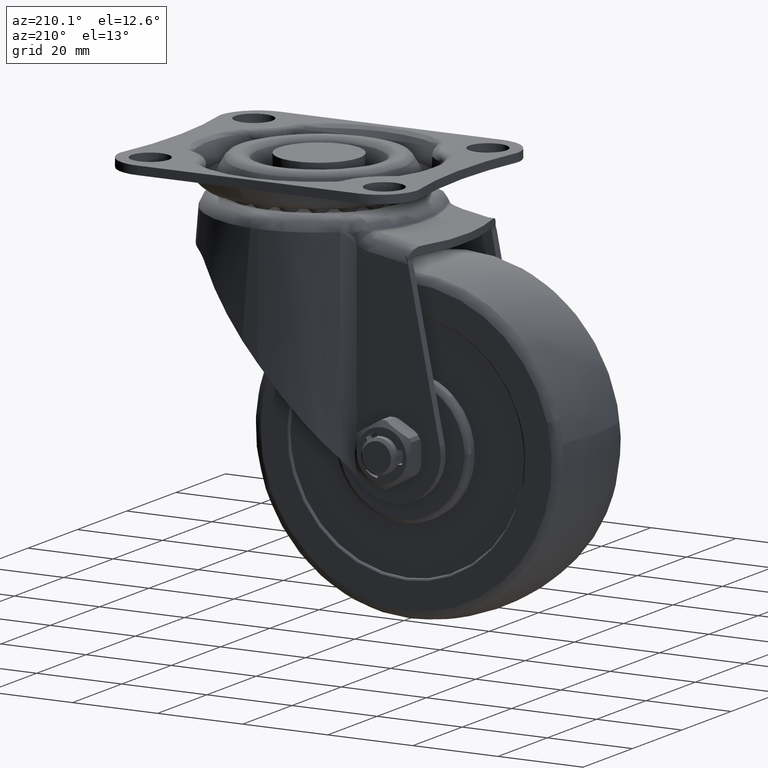
[diagram: clean part render]
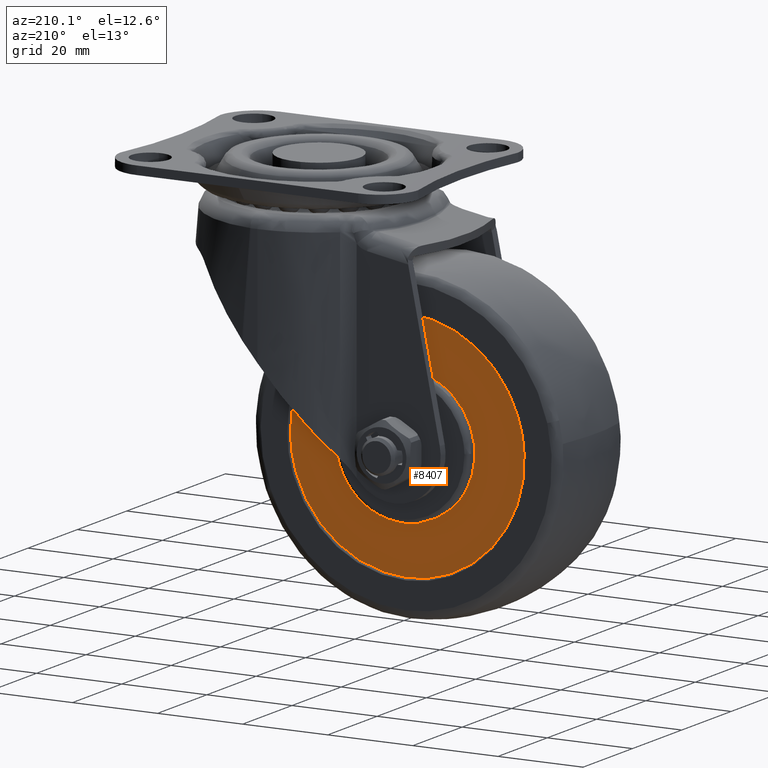
[diagram: same view with one face highlighted and labeled with its STEP entity id]
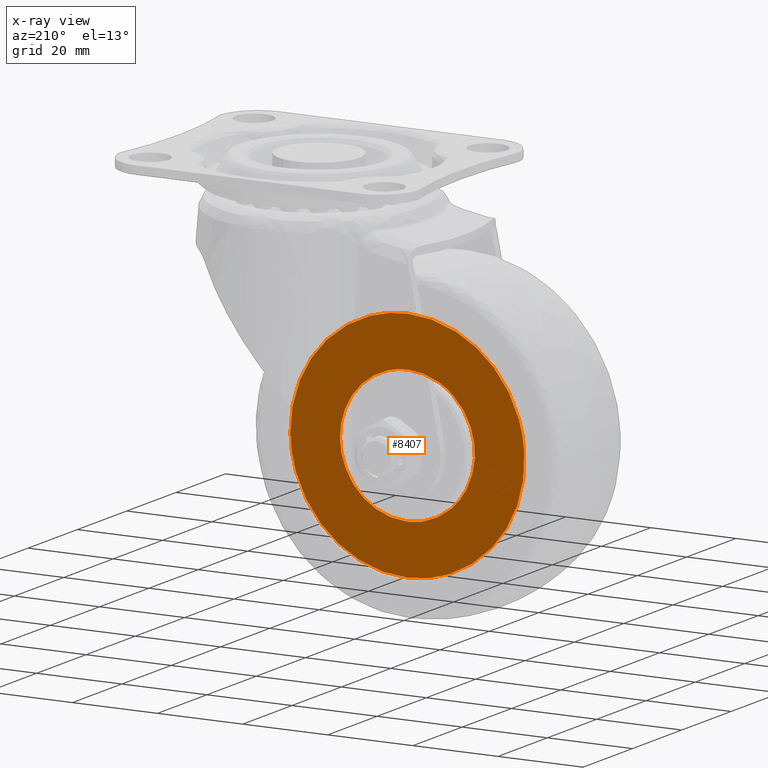
[diagram: x-ray of the same camera — body ghosted, the highlighted face saturated]
A machine part, auxiliary view. The second image highlights one B-rep face of the part: STEP entity #8407.
The next image is the same camera in x-ray: the body ghosted, the highlighted face saturated — about 0% of this face is hidden behind the body in this view.
In plain terms, the highlighted face is a freeform B-spline surface patch.
Its self-contained STEP definition (entity closure, byte-faithful):
#6808=CARTESIAN_POINT('',(-38.371279369698911,12.499999999999700,-67.485786635222183));
#6809=VERTEX_POINT('',#6808);
#6810=CARTESIAN_POINT('',(-28.0,12.500000000000000,-71.350001999999918));
#6811=VERTEX_POINT('',#6810);
#6812=CARTESIAN_POINT('',(-38.371279369698911,12.499999999999702,-67.485786635222183));
#6813=CARTESIAN_POINT('',(-33.905520031965096,12.500000000000000,-71.350001999999918));
#6814=CARTESIAN_POINT('',(-28.0,12.500000000000000,-71.350001999999918));
#6822=(BOUNDED_CURVE()B_SPLINE_CURVE(2,(#6812,#6813,#6814),.UNSPECIFIED.,.F.,.U.)B_SPLINE_CURVE_WITH_KNOTS((3,3),(0.885882139820083,1.0),.UNSPECIFIED.)CURVE()GEOMETRIC_REPRESENTATION_ITEM()RATIONAL_B_SPLINE_CURVE((0.854663300936260,0.866302610431202,1.0))REPRESENTATION_ITEM(''));
#6823=EDGE_CURVE('',#6809,#6811,#6822,.T.);
#6894=CARTESIAN_POINT('',(-38.708100243443752,12.500000000000000,-43.814161470126407));
#6895=VERTEX_POINT('',#6894);
#6901=CARTESIAN_POINT('',(-28.0,12.500000000000000,-39.650009999999703));
#6902=VERTEX_POINT('',#6901);
#6903=CARTESIAN_POINT('',(-28.0,12.500000000000000,-39.650009999999703));
#6904=CARTESIAN_POINT('',(-34.163724903986612,12.500000000000005,-39.650009999999703));
#6905=CARTESIAN_POINT('',(-38.708100243443745,12.499999999999996,-43.814161470126400));
#6913=(BOUNDED_CURVE()B_SPLINE_CURVE(2,(#6903,#6904,#6905),.UNSPECIFIED.,.F.,.U.)B_SPLINE_CURVE_WITH_KNOTS((3,3),(0.500000000000000,0.618415185251219),.UNSPECIFIED.)CURVE()GEOMETRIC_REPRESENTATION_ITEM()RATIONAL_B_SPLINE_CURVE((1.0,0.861267980941516,0.853959783779721))REPRESENTATION_ITEM(''));
#6914=EDGE_CURVE('',#6902,#6895,#6913,.T.);
#6916=CARTESIAN_POINT('',(-28.0,12.500000000000000,-71.350001999999918));
#6917=CARTESIAN_POINT('',(-12.150003999999896,12.500000000000000,-71.350001999999918));
#6918=CARTESIAN_POINT('',(-12.150003999999900,12.500000000000000,-55.500005999999800));
#6919=CARTESIAN_POINT('',(-12.150003999999896,12.500000000000000,-39.650009999999696));
#6920=CARTESIAN_POINT('',(-28.0,12.500000000000000,-39.650009999999703));
#6928=(BOUNDED_CURVE()B_SPLINE_CURVE(2,(#6916,#6917,#6918,#6919,#6920),.UNSPECIFIED.,.F.,.U.)B_SPLINE_CURVE_WITH_KNOTS((3,2,3),(0.0,0.250000000000000,0.500000000000000),.UNSPECIFIED.)CURVE()GEOMETRIC_REPRESENTATION_ITEM()RATIONAL_B_SPLINE_CURVE((1.0,0.707106781186548,1.0,0.707106781186548,1.0))REPRESENTATION_ITEM(''));
#6929=EDGE_CURVE('',#6811,#6902,#6928,.T.);
#6952=CARTESIAN_POINT('',(-38.708100243443745,12.499999999999996,-43.814161470126400));
#6953=CARTESIAN_POINT('',(-43.849996000000090,12.500000000000000,-48.525839352010429));
#6954=CARTESIAN_POINT('',(-43.849996000000097,12.500000000000000,-55.500005999999800));
#6955=CARTESIAN_POINT('',(-43.849996000000097,12.499999999999996,-62.745060729286045));
#6956=CARTESIAN_POINT('',(-38.371279369698911,12.499999999999702,-67.485786635222183));
#6964=(BOUNDED_CURVE()B_SPLINE_CURVE(2,(#6952,#6953,#6954,#6955,#6956),.UNSPECIFIED.,.F.,.U.)B_SPLINE_CURVE_WITH_KNOTS((3,2,3),(0.618415185251219,0.750000000000000,0.885882139820083),.UNSPECIFIED.)CURVE()GEOMETRIC_REPRESENTATION_ITEM()RATIONAL_B_SPLINE_CURVE((0.853959783779721,0.845838800245031,1.0,0.840804170755345,0.854663300936260))REPRESENTATION_ITEM(''));
#6965=EDGE_CURVE('',#6895,#6809,#6964,.T.);
#7245=CARTESIAN_POINT('',(-55.433056030609031,12.500000002416551,-53.582341581634239));
#7246=VERTEX_POINT('',#7245);
#7247=CARTESIAN_POINT('',(-28.0,12.500000000000000,-83.000005999999800));
#7248=VERTEX_POINT('',#7247);
#7249=CARTESIAN_POINT('',(-55.433056030609031,12.500000002416554,-53.582341581634246));
#7250=CARTESIAN_POINT('',(-55.500000000000000,12.500000000000005,-54.540005313404173));
#7251=CARTESIAN_POINT('',(-55.500000000000000,12.500000000000000,-55.500005999999800));
#7252=CARTESIAN_POINT('',(-55.499999999999993,12.499999999999998,-83.000005999999786));
#7253=CARTESIAN_POINT('',(-28.0,12.500000000000000,-83.000005999999800));
#7261=(BOUNDED_CURVE()B_SPLINE_CURVE(2,(#7249,#7250,#7251,#7252,#7253),.UNSPECIFIED.,.F.,.U.)B_SPLINE_CURVE_WITH_KNOTS((3,2,3),(0.737833686534622,0.750000000000000,1.0),.UNSPECIFIED.)CURVE()GEOMETRIC_REPRESENTATION_ITEM()RATIONAL_B_SPLINE_CURVE((0.972879876385982,0.985746277152128,1.0,0.707106781186547,1.0))REPRESENTATION_ITEM(''));
#7262=EDGE_CURVE('',#7246,#7248,#7261,.T.);
#7264=CARTESIAN_POINT('',(-0.502171284395656,12.500000002405290,-55.845572096839327));
#7265=VERTEX_POINT('',#7264);
#7266=CARTESIAN_POINT('',(-28.0,12.500000000000000,-83.000005999999800));
#7267=CARTESIAN_POINT('',(-0.843421927642330,12.499999999999998,-83.000005999999772));
#7268=CARTESIAN_POINT('',(-0.502171284395656,12.500000002405288,-55.845572096839319));
#7276=(BOUNDED_CURVE()B_SPLINE_CURVE(2,(#7266,#7267,#7268),.UNSPECIFIED.,.F.,.U.)B_SPLINE_CURVE_WITH_KNOTS((3,3),(0.0,0.247784295921123),.UNSPECIFIED.)CURVE()GEOMETRIC_REPRESENTATION_ITEM()RATIONAL_B_SPLINE_CURVE((1.0,0.709702639984949,0.994854295642619))REPRESENTATION_ITEM(''));
#7277=EDGE_CURVE('',#7248,#7265,#7276,.T.);
#7365=CARTESIAN_POINT('',(-28.0,12.500000000000000,-28.000005999999800));
#7366=VERTEX_POINT('',#7365);
#7367=CARTESIAN_POINT('',(-28.0,12.500000000000000,-28.000005999999800));
#7368=CARTESIAN_POINT('',(-53.644763299755262,12.500000000000002,-28.000005999999814));
#7369=CARTESIAN_POINT('',(-55.433056030609031,12.500000002416556,-53.582341581634232));
#7377=(BOUNDED_CURVE()B_SPLINE_CURVE(2,(#7367,#7368,#7369),.UNSPECIFIED.,.F.,.U.)B_SPLINE_CURVE_WITH_KNOTS((3,3),(0.500000000000000,0.737833686534621),.UNSPECIFIED.)CURVE()GEOMETRIC_REPRESENTATION_ITEM()RATIONAL_B_SPLINE_CURVE((1.0,0.721360504034421,0.972879876385980))REPRESENTATION_ITEM(''));
#7378=EDGE_CURVE('',#7366,#7246,#7377,.T.);
#7412=CARTESIAN_POINT('',(-0.502171284395656,12.500000002405290,-55.845572096839327));
#7413=CARTESIAN_POINT('',(-0.500000000000001,12.500000000000002,-55.672795869824107));
#7414=CARTESIAN_POINT('',(-0.500000000000000,12.500000000000000,-55.500005999999800));
#7415=CARTESIAN_POINT('',(-0.500000000000004,12.499999999999998,-28.000005999999807));
#7416=CARTESIAN_POINT('',(-28.0,12.500000000000000,-28.000005999999800));
#7424=(BOUNDED_CURVE()B_SPLINE_CURVE(2,(#7412,#7413,#7414,#7415,#7416),.UNSPECIFIED.,.F.,.U.)B_SPLINE_CURVE_WITH_KNOTS((3,2,3),(0.247784295921123,0.250000000000000,0.500000000000000),.UNSPECIFIED.)CURVE()GEOMETRIC_REPRESENTATION_ITEM()RATIONAL_B_SPLINE_CURVE((0.994854295642619,0.997404141201598,1.0,0.707106781186547,1.0))REPRESENTATION_ITEM(''));
#7425=EDGE_CURVE('',#7265,#7366,#7424,.T.);
#8390=CARTESIAN_POINT('',(-58.243849431693071,12.500000000000000,-25.252755590299831));
#8391=CARTESIAN_POINT('',(-58.243849431693071,12.500000000000000,-85.747257393176412));
#8392=CARTESIAN_POINT('',(2.244815015568957,12.500000000000000,-25.252755590299831));
#8393=CARTESIAN_POINT('',(2.244815015568957,12.500000000000000,-85.747257393176412));
#8394=B_SPLINE_SURFACE_WITH_KNOTS('',1,1,((#8390,#8392),(#8391,#8393)),.UNSPECIFIED.,.F.,.F.,.U.,(2,2),(2,2),(0.0,60.494501802876577),(0.0,60.488664447262039),.UNSPECIFIED.);
#8395=ORIENTED_EDGE('',*,*,#7262,.F.);
#8396=ORIENTED_EDGE('',*,*,#7378,.F.);
#8397=ORIENTED_EDGE('',*,*,#7425,.F.);
#8398=ORIENTED_EDGE('',*,*,#7277,.F.);
#8399=EDGE_LOOP('',(#8395,#8396,#8397,#8398));
#8400=FACE_OUTER_BOUND('',#8399,.T.);
#8401=ORIENTED_EDGE('',*,*,#6929,.T.);
#8402=ORIENTED_EDGE('',*,*,#6914,.T.);
#8403=ORIENTED_EDGE('',*,*,#6965,.T.);
#8404=ORIENTED_EDGE('',*,*,#6823,.T.);
#8405=EDGE_LOOP('',(#8401,#8402,#8403,#8404));
#8406=FACE_BOUND('',#8405,.T.);
#8407=ADVANCED_FACE('',(#8400,#8406),#8394,.F.);